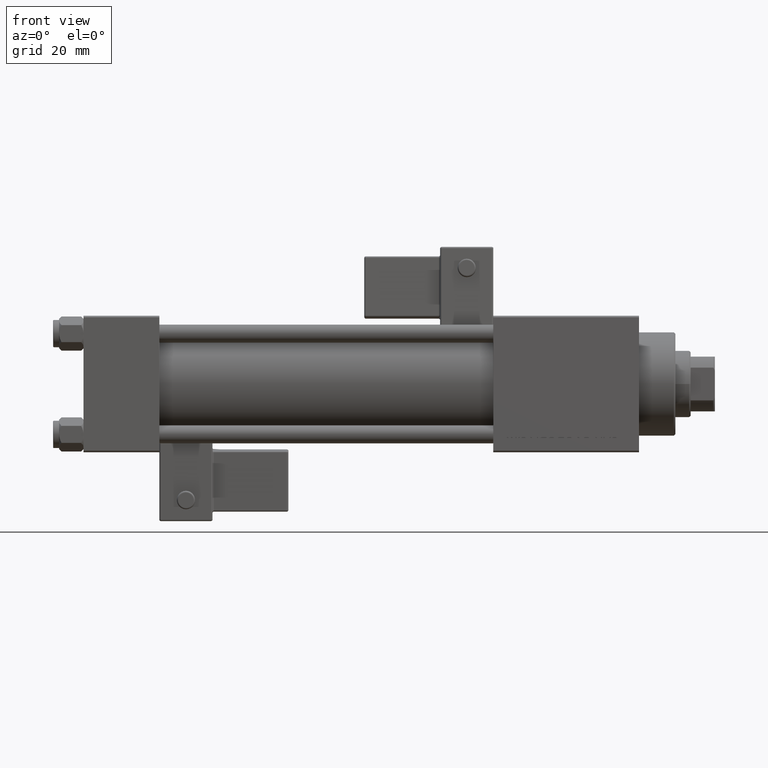
[diagram: clean part render]
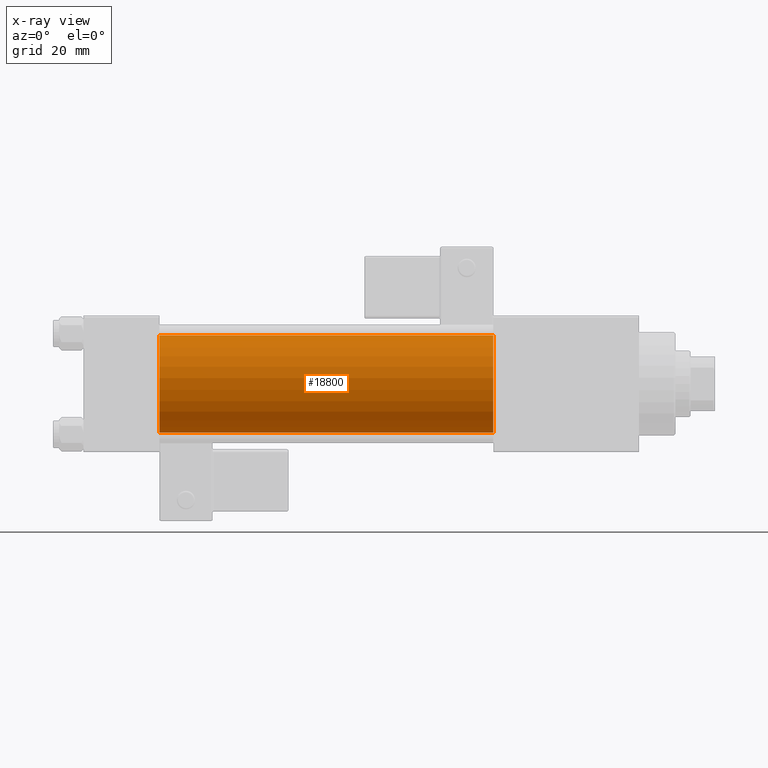
[diagram: x-ray — body ghosted, one internal face saturated and labeled with its STEP entity id]
A machine part, front view, then the same camera in x-ray: the body is ghosted and one INTERNAL B-rep face — a face not visible from any outside direction — is saturated and labeled: STEP entity #18800.
In plain terms, the highlighted cylindrical surface (partial cylindrical patch) has radius 16 mm, axis along (-1, -0, -0).
Its self-contained STEP definition (entity closure, byte-faithful):
#369 = DIRECTION ( 'NONE',  ( 0.000000000000000000, 0.000000000000000000, -1.000000000000000000 ) ) ;
#6416 = CARTESIAN_POINT ( 'NONE',  ( 135.0000000000000000, -6.426503353294456087E-16, -16.00000000000000000 ) ) ;
#7805 = CIRCLE ( 'NONE', #49461, 16.00000000000000000 ) ;
#9102 = VECTOR ( 'NONE', #53314, 1000.000000000000000 ) ;
#11896 = EDGE_LOOP ( 'NONE', ( #24105, #32748, #37492, #43443 ) ) ;
#13176 = DIRECTION ( 'NONE',  ( 1.000000000000000000, 0.000000000000000000, 0.000000000000000000 ) ) ;
#13727 = VECTOR ( 'NONE', #34881, 1000.000000000000000 ) ;
#15112 = DIRECTION ( 'NONE',  ( 0.000000000000000000, 0.000000000000000000, 1.000000000000000000 ) ) ;
#17604 = CARTESIAN_POINT ( 'NONE',  ( 25.00000000000000000, -6.426503353294456087E-16, -16.00000000000000000 ) ) ;
#18800 = ADVANCED_FACE ( 'NONE', ( #51794 ), #30611, .F. ) ;
#21568 = LINE ( 'NONE', #34351, #13727 ) ;
#22310 = CARTESIAN_POINT ( 'NONE',  ( 135.0000000000000000, -2.602085213965210642E-15, 16.00000000000000000 ) ) ;
#24105 = ORIENTED_EDGE ( 'NONE', *, *, #33283, .T. ) ;
#24775 = LINE ( 'NONE', #29383, #9102 ) ;
#27055 = CARTESIAN_POINT ( 'NONE',  ( 25.00000000000000000, -2.602085213965210642E-15, 0.000000000000000000 ) ) ;
#27795 = VERTEX_POINT ( 'NONE', #17604 ) ;
#28453 = AXIS2_PLACEMENT_3D ( 'NONE', #27055, #52854, #32203 ) ;
#29383 = CARTESIAN_POINT ( 'NONE',  ( 135.0000000000000000, -2.602085213965210642E-15, 16.00000000000000000 ) ) ;
#30611 = CYLINDRICAL_SURFACE ( 'NONE', #42107, 16.00000000000000000 ) ;
#31693 = DIRECTION ( 'NONE',  ( -1.000000000000000000, -0.000000000000000000, -0.000000000000000000 ) ) ;
#32203 = DIRECTION ( 'NONE',  ( 0.000000000000000000, 0.000000000000000000, -1.000000000000000000 ) ) ;
#32748 = ORIENTED_EDGE ( 'NONE', *, *, #48384, .T. ) ;
#33283 = EDGE_CURVE ( 'NONE', #46879, #41233, #7805, .T. ) ;
#34091 = CARTESIAN_POINT ( 'NONE',  ( 135.0000000000000000, -2.602085213965210642E-15, 0.000000000000000000 ) ) ;
#34351 = CARTESIAN_POINT ( 'NONE',  ( 135.0000000000000000, -6.426503353294456087E-16, -16.00000000000000000 ) ) ;
#34881 = DIRECTION ( 'NONE',  ( -1.000000000000000000, -0.000000000000000000, -0.000000000000000000 ) ) ;
#37044 = EDGE_CURVE ( 'NONE', #46879, #43994, #24775, .T. ) ;
#37492 = ORIENTED_EDGE ( 'NONE', *, *, #47328, .F. ) ;
#41233 = VERTEX_POINT ( 'NONE', #6416 ) ;
#42107 = AXIS2_PLACEMENT_3D ( 'NONE', #51520, #31693, #15112 ) ;
#43443 = ORIENTED_EDGE ( 'NONE', *, *, #37044, .F. ) ;
#43994 = VERTEX_POINT ( 'NONE', #48844 ) ;
#45795 = CIRCLE ( 'NONE', #28453, 16.00000000000000000 ) ;
#46879 = VERTEX_POINT ( 'NONE', #22310 ) ;
#47328 = EDGE_CURVE ( 'NONE', #43994, #27795, #45795, .T. ) ;
#48384 = EDGE_CURVE ( 'NONE', #41233, #27795, #21568, .T. ) ;
#48844 = CARTESIAN_POINT ( 'NONE',  ( 25.00000000000000000, -2.602085213965210642E-15, 16.00000000000000000 ) ) ;
#49461 = AXIS2_PLACEMENT_3D ( 'NONE', #34091, #13176, #369 ) ;
#51520 = CARTESIAN_POINT ( 'NONE',  ( 135.0000000000000000, -2.602085213965210642E-15, 0.000000000000000000 ) ) ;
#51794 = FACE_OUTER_BOUND ( 'NONE', #11896, .T. ) ;
#52854 = DIRECTION ( 'NONE',  ( 1.000000000000000000, 0.000000000000000000, 0.000000000000000000 ) ) ;
#53314 = DIRECTION ( 'NONE',  ( -1.000000000000000000, -0.000000000000000000, -0.000000000000000000 ) ) ;